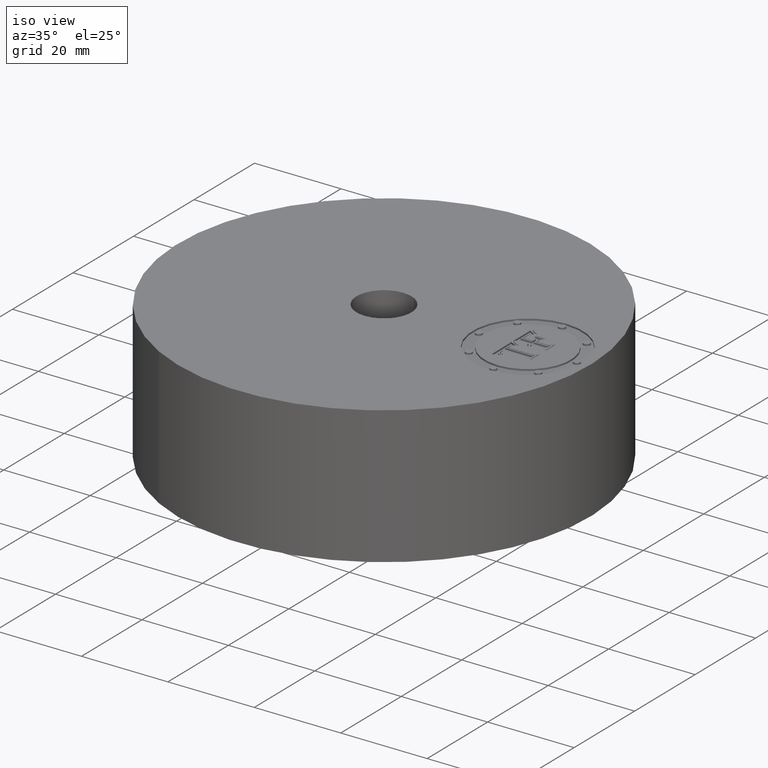
[diagram: clean part render]
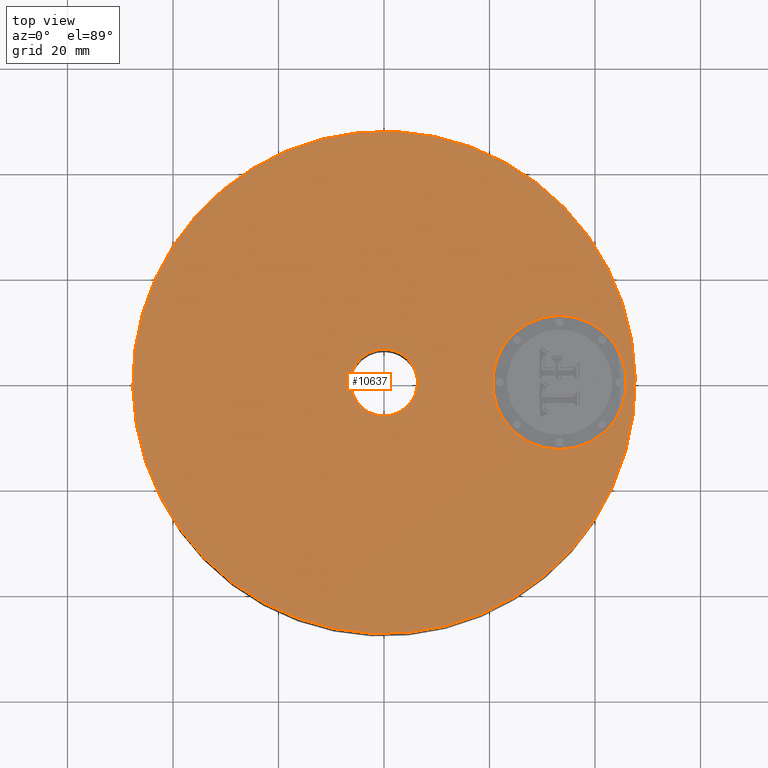
[diagram: tour spotlight — one face highlighted and labeled with its STEP entity id]
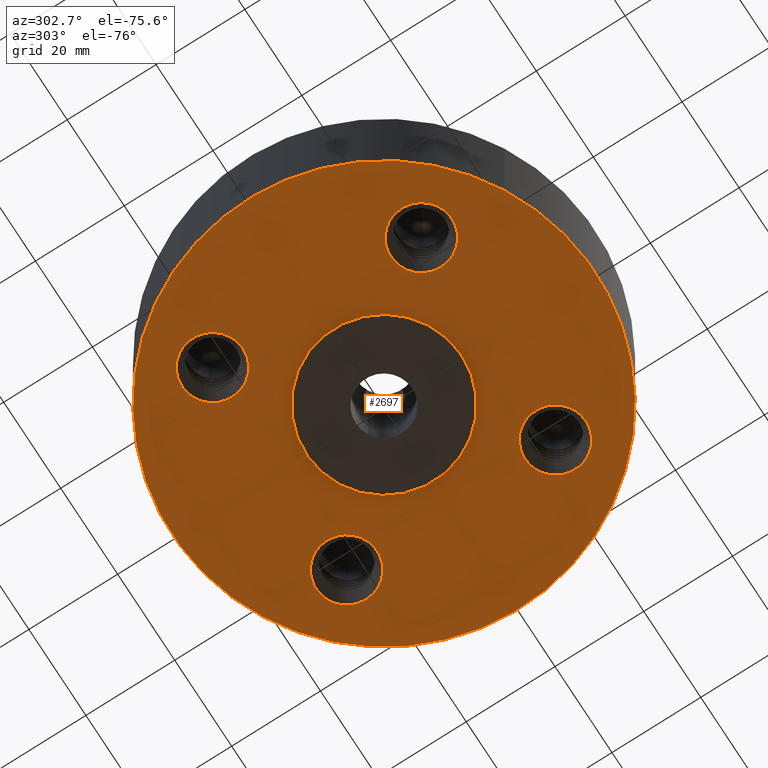
[diagram: tour spotlight — one face highlighted and labeled with its STEP entity id]
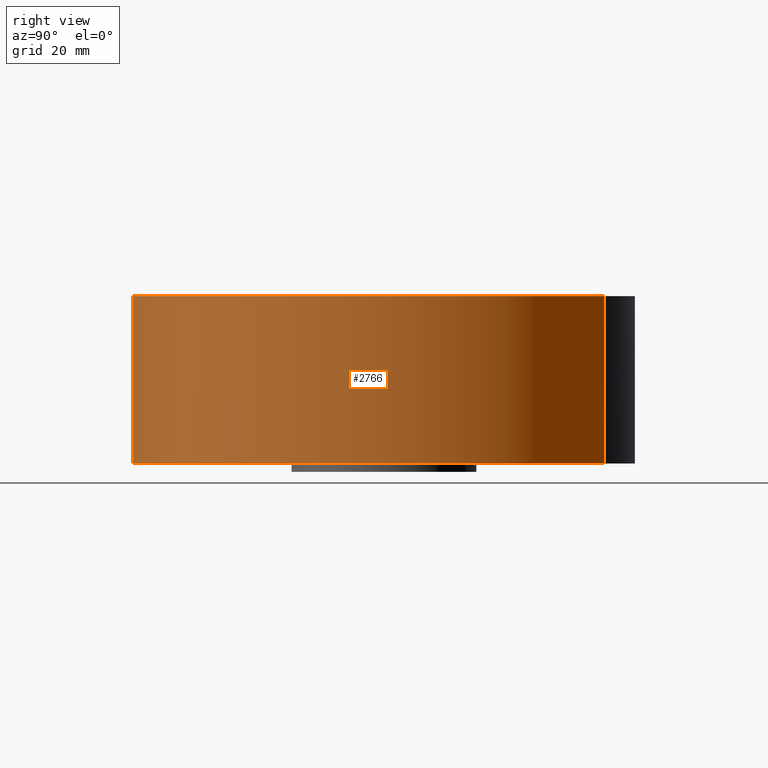
[diagram: tour spotlight — one face highlighted and labeled with its STEP entity id]
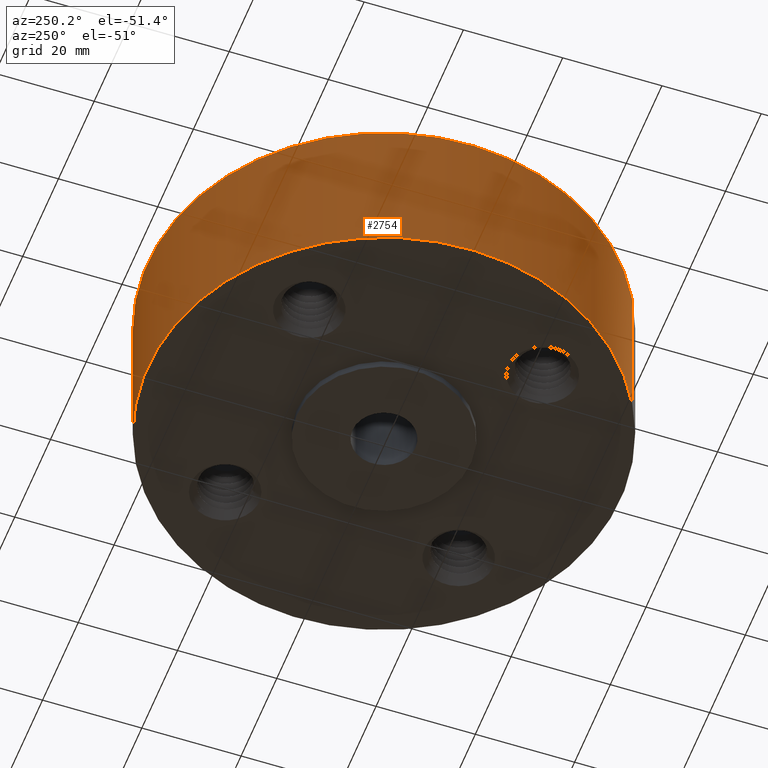
[diagram: tour spotlight — one face highlighted and labeled with its STEP entity id]
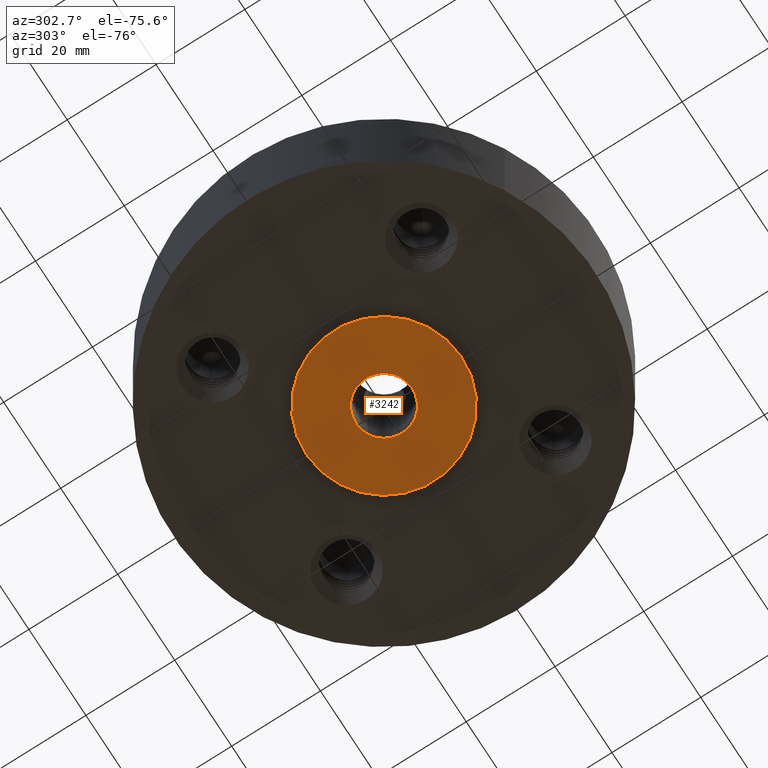
[diagram: tour spotlight — one face highlighted and labeled with its STEP entity id]
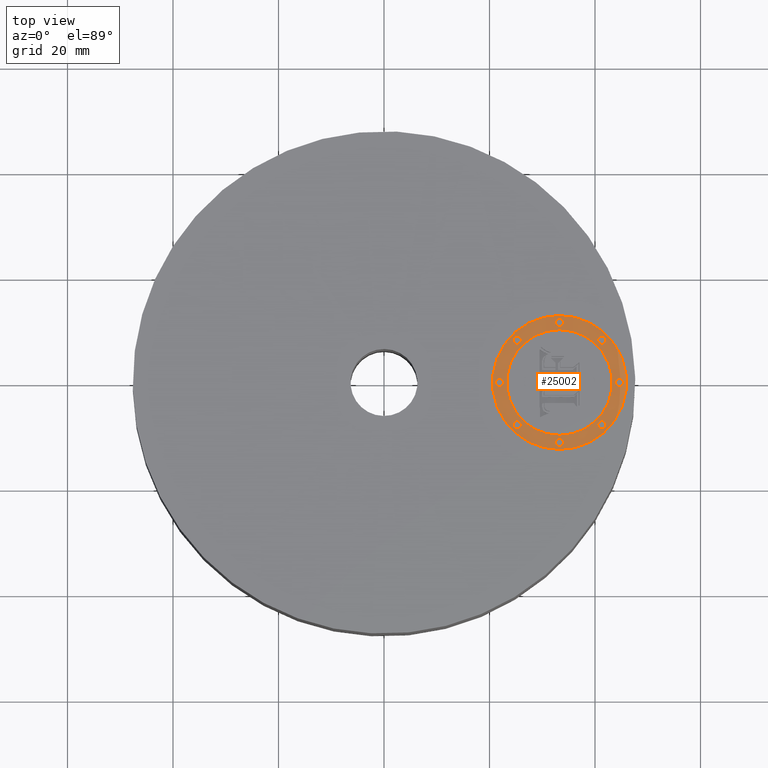
[diagram: tour spotlight — one face highlighted and labeled with its STEP entity id]
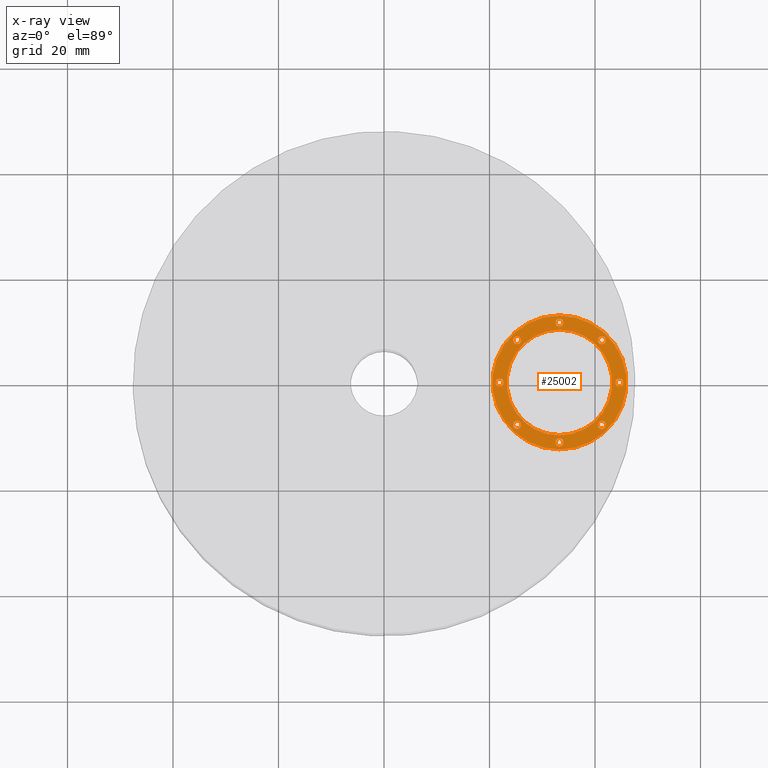
[diagram: x-ray of the same camera — body ghosted, this tour face saturated]
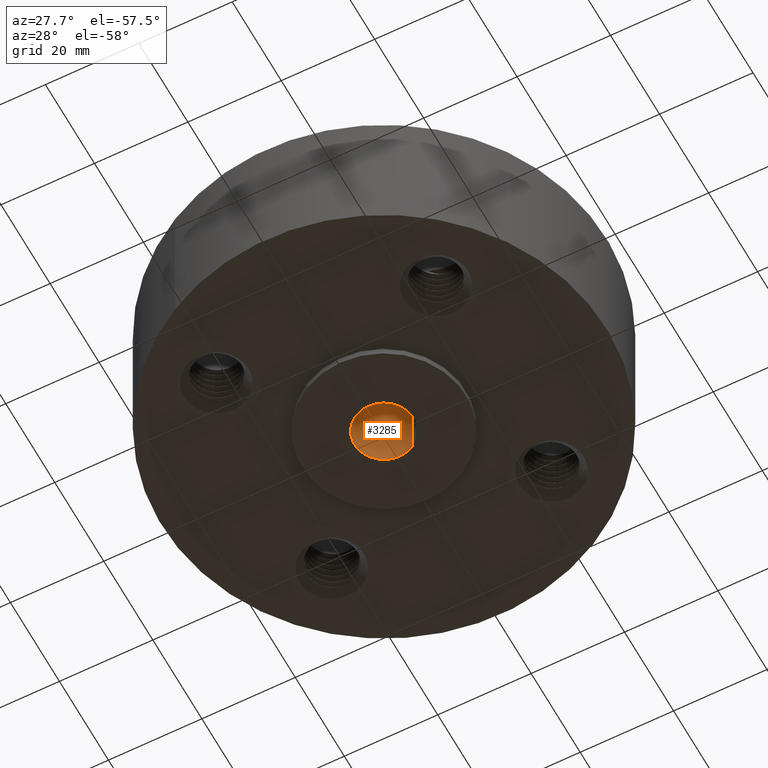
[diagram: tour spotlight — one face highlighted and labeled with its STEP entity id]
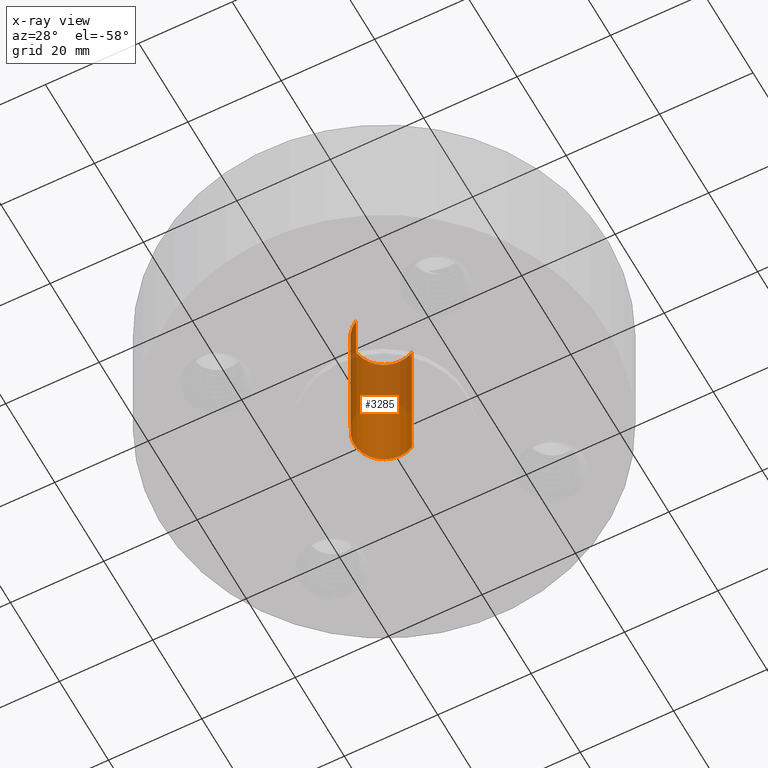
[diagram: x-ray of the same camera — body ghosted, this tour face saturated]
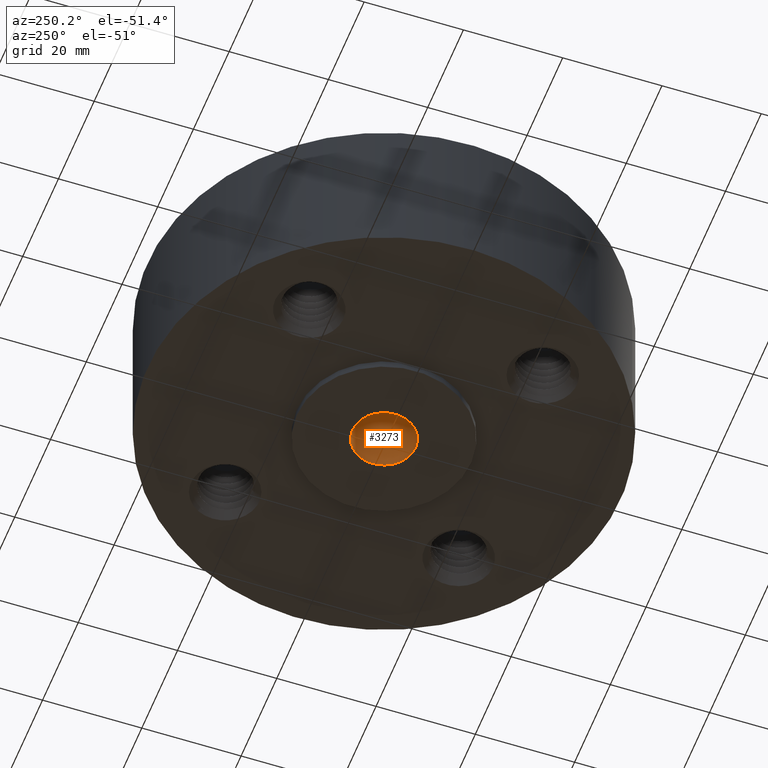
[diagram: tour spotlight — one face highlighted and labeled with its STEP entity id]
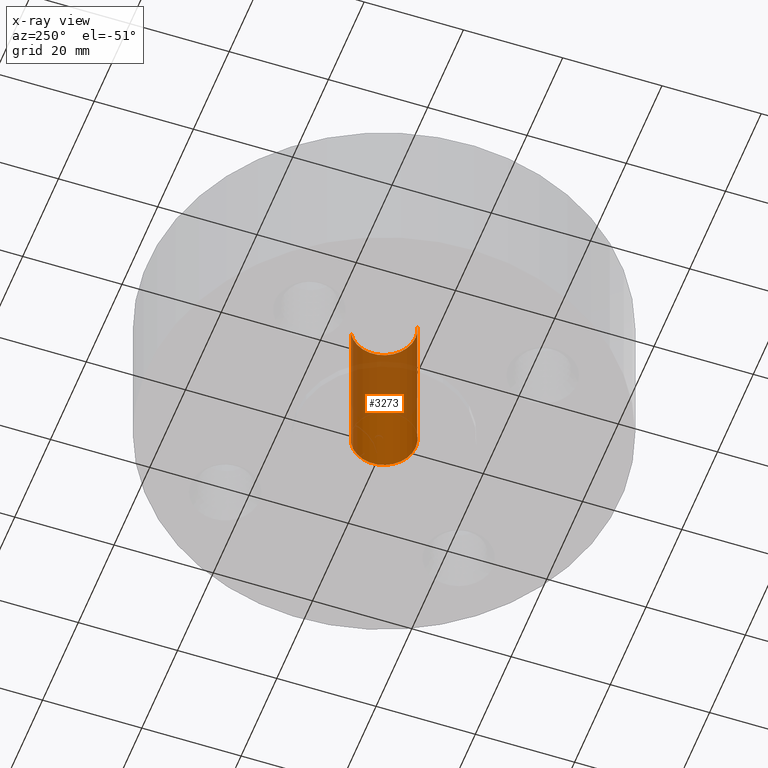
[diagram: x-ray of the same camera — body ghosted, this tour face saturated]
A machine part: a face-by-face anatomy tour. The part has 586 B-rep faces; the first image is the clean iso view, then the 8 largest visible faces are spotlighted one at a time (largest first), each with its STEP entity span.

Face 1 — top view, entity #10637. In plain terms, the highlighted planar face has unit normal (0, 0, -1).
Definition (entity closure, byte-faithful):
#2738=AXIS2_PLACEMENT_3D('Circle Axis2P3D',#2736,#2737,$) ;
#2757=AXIS2_PLACEMENT_3D('Circle Axis2P3D',#2755,#2756,$) ;
#3250=AXIS2_PLACEMENT_3D('Circle Axis2P3D',#3248,#3249,$) ;
#3276=AXIS2_PLACEMENT_3D('Circle Axis2P3D',#3274,#3275,$) ;
#10609=AXIS2_PLACEMENT_3D('Plane Axis2P3D',#10606,#10607,#10608) ;
#10621=AXIS2_PLACEMENT_3D('Circle Axis2P3D',#10619,#10620,$) ;
#10630=AXIS2_PLACEMENT_3D('Circle Axis2P3D',#10628,#10629,$) ;
#2733=CARTESIAN_POINT('Vertex',(-0.898922884886,-1.64546730355,1.25)) ;
#2736=CARTESIAN_POINT('Axis2P3D Location',(0.,0.,1.25)) ;
#2740=CARTESIAN_POINT('Vertex',(0.898922884886,1.64546730355,1.25)) ;
#2755=CARTESIAN_POINT('Axis2P3D Location',(0.,0.,1.25)) ;
#3248=CARTESIAN_POINT('Axis2P3D Location',(0.,0.,1.25000000001)) ;
#3252=CARTESIAN_POINT('Vertex',(0.119856384652,0.219395640473,1.25000000001)) ;
#3254=CARTESIAN_POINT('Vertex',(-0.119856384652,-0.219395640473,1.25000000001)) ;
#3274=CARTESIAN_POINT('Axis2P3D Location',(0.,0.,1.25000000001)) ;
#10606=CARTESIAN_POINT('Axis2P3D Location',(0.,0.250000000001,1.25000000001)) ;
#10619=CARTESIAN_POINT('Axis2P3D Location',(1.31000000001,0.,1.25000000001)) ;
#10623=CARTESIAN_POINT('Vertex',(1.31000000001,-0.499999995002,1.25000000001)) ;
#10625=CARTESIAN_POINT('Vertex',(1.31000000001,0.499999995002,1.25000000001)) ;
#10628=CARTESIAN_POINT('Axis2P3D Location',(1.31000000001,0.,1.25000000001)) ;
#2737=DIRECTION('Axis2P3D Direction',(0.,0.,-0.0393700787402)) ;
#2756=DIRECTION('Axis2P3D Direction',(0.,0.,-0.0393700787402)) ;
#3249=DIRECTION('Axis2P3D Direction',(0.,0.,-0.0393700787402)) ;
#3275=DIRECTION('Axis2P3D Direction',(0.,0.,-0.0393700787402)) ;
#10607=DIRECTION('Axis2P3D Direction',(0.,0.,-0.0393700787402)) ;
#10608=DIRECTION('Axis2P3D XDirection',(0.0393700787402,0.,0.)) ;
#10620=DIRECTION('Axis2P3D Direction',(0.,0.,-0.0393700787402)) ;
#10629=DIRECTION('Axis2P3D Direction',(0.,0.,-0.0393700787402)) ;
#10612=ORIENTED_EDGE('',*,*,#2759,.F.) ;
#10613=ORIENTED_EDGE('',*,*,#2742,.F.) ;
#10616=ORIENTED_EDGE('',*,*,#3278,.T.) ;
#10617=ORIENTED_EDGE('',*,*,#3256,.T.) ;
#10634=ORIENTED_EDGE('',*,*,#10627,.F.) ;
#10635=ORIENTED_EDGE('',*,*,#10632,.F.) ;
#10618=FACE_BOUND('',#10615,.T.) ;
#10636=FACE_BOUND('',#10633,.T.) ;
#10637=ADVANCED_FACE('PartBody',(#10614,#10618,#10636),#10610,.F.) ;
#2739=CIRCLE('generated circle',#2738,1.87500000001) ;
#2758=CIRCLE('generated circle',#2757,1.87500000001) ;
#3251=CIRCLE('generated circle',#3250,0.250000000001) ;
#3277=CIRCLE('generated circle',#3276,0.250000000001) ;
#10622=CIRCLE('generated circle',#10621,0.499999995002) ;
#10631=CIRCLE('generated circle',#10630,0.499999995002) ;
#2742=EDGE_CURVE('',#2734,#2741,#2739,.T.) ;
#2759=EDGE_CURVE('',#2741,#2734,#2758,.T.) ;
#3256=EDGE_CURVE('',#3253,#3255,#3251,.T.) ;
#3278=EDGE_CURVE('',#3255,#3253,#3277,.T.) ;
#10627=EDGE_CURVE('',#10624,#10626,#10622,.F.) ;
#10632=EDGE_CURVE('',#10626,#10624,#10631,.F.) ;
#10611=EDGE_LOOP('',(#10612,#10613)) ;
#10615=EDGE_LOOP('',(#10616,#10617)) ;
#10633=EDGE_LOOP('',(#10634,#10635)) ;
#10614=FACE_OUTER_BOUND('',#10611,.T.) ;
#10610=PLANE('',#10609) ;
#2734=VERTEX_POINT('',#2733) ;
#2741=VERTEX_POINT('',#2740) ;
#3253=VERTEX_POINT('',#3252) ;
#3255=VERTEX_POINT('',#3254) ;
#10624=VERTEX_POINT('',#10623) ;
#10626=VERTEX_POINT('',#10625) ;

Face 2 — auxiliary view, entity #2697. In plain terms, the highlighted planar face has unit normal (0, 0, -1).
Definition (entity closure, byte-faithful):
#2448=AXIS2_PLACEMENT_3D('Circle Axis2P3D',#2446,#2447,$) ;
#2587=AXIS2_PLACEMENT_3D('Circle Axis2P3D',#2585,#2586,$) ;
#2601=AXIS2_PLACEMENT_3D('Plane Axis2P3D',#2598,#2599,#2600) ;
#2605=AXIS2_PLACEMENT_3D('Circle Axis2P3D',#2603,#2604,$) ;
#2614=AXIS2_PLACEMENT_3D('Circle Axis2P3D',#2612,#2613,$) ;
#2627=AXIS2_PLACEMENT_3D('Circle Axis2P3D',#2625,#2626,$) ;
#2636=AXIS2_PLACEMENT_3D('Circle Axis2P3D',#2634,#2635,$) ;
#2645=AXIS2_PLACEMENT_3D('Circle Axis2P3D',#2643,#2644,$) ;
#2654=AXIS2_PLACEMENT_3D('Circle Axis2P3D',#2652,#2653,$) ;
#2663=AXIS2_PLACEMENT_3D('Circle Axis2P3D',#2661,#2662,$) ;
#2672=AXIS2_PLACEMENT_3D('Circle Axis2P3D',#2670,#2671,$) ;
#2681=AXIS2_PLACEMENT_3D('Circle Axis2P3D',#2679,#2680,$) ;
#2690=AXIS2_PLACEMENT_3D('Circle Axis2P3D',#2688,#2689,$) ;
#2443=CARTESIAN_POINT('Vertex',(1.16413475763,1.05623420432,0.)) ;
#2446=CARTESIAN_POINT('Axis2P3D Location',(0.926309883358,0.926309883358,0.)) ;
#2450=CARTESIAN_POINT('Vertex',(0.688485009085,0.796385562396,0.)) ;
#2585=CARTESIAN_POINT('Axis2P3D Location',(0.926309883358,0.926309883358,0.)) ;
#2598=CARTESIAN_POINT('Axis2P3D Location',(0.,1.87500000001,0.)) ;
#2603=CARTESIAN_POINT('Axis2P3D Location',(0.,0.,0.)) ;
#2607=CARTESIAN_POINT('Vertex',(-0.898922884886,-1.64546730355,-3.65062311089E-014)) ;
#2609=CARTESIAN_POINT('Vertex',(0.898922884886,1.64546730355,-3.65062311089E-014)) ;
#2612=CARTESIAN_POINT('Axis2P3D Location',(0.,0.,0.)) ;
#2625=CARTESIAN_POINT('Axis2P3D Location',(0.,0.,0.)) ;
#2629=CARTESIAN_POINT('Vertex',(0.330803621638,0.605531967707,-2.73447056774E-014)) ;
#2631=CARTESIAN_POINT('Vertex',(-0.330803621638,-0.605531967707,-2.73447056774E-014)) ;
#2634=CARTESIAN_POINT('Axis2P3D Location',(0.,0.,0.)) ;
#2643=CARTESIAN_POINT('Axis2P3D Location',(0.926309883358,-0.926309883358,0.)) ;
#2647=CARTESIAN_POINT('Vertex',(1.05623420432,-1.16413475763,0.)) ;
#2649=CARTESIAN_POINT('Vertex',(0.796385562396,-0.688485009085,0.)) ;
#2652=CARTESIAN_POINT('Axis2P3D Location',(0.926309883358,-0.926309883358,0.)) ;
#2661=CARTESIAN_POINT('Axis2P3D Location',(-0.926309883358,-0.926309883358,0.)) ;
#2665=CARTESIAN_POINT('Vertex',(-1.16413475763,-1.05623420432,0.)) ;
#2667=CARTESIAN_POINT('Vertex',(-0.688485009085,-0.796385562396,0.)) ;
#2670=CARTESIAN_POINT('Axis2P3D Location',(-0.926309883358,-0.926309883358,0.)) ;
#2679=CARTESIAN_POINT('Axis2P3D Location',(-0.926309883358,0.926309883358,0.)) ;
#2683=CARTESIAN_POINT('Vertex',(-1.05623420432,1.16413475763,0.)) ;
#2685=CARTESIAN_POINT('Vertex',(-0.796385562396,0.688485009085,0.)) ;
#2688=CARTESIAN_POINT('Axis2P3D Location',(-0.926309883358,0.926309883358,0.)) ;
#2447=DIRECTION('Axis2P3D Direction',(0.,0.,-0.0393700787402)) ;
#2586=DIRECTION('Axis2P3D Direction',(0.,0.,-0.0393700787402)) ;
#2599=DIRECTION('Axis2P3D Direction',(0.,0.,-0.0393700787402)) ;
#2600=DIRECTION('Axis2P3D XDirection',(0.0393700787402,0.,0.)) ;
#2604=DIRECTION('Axis2P3D Direction',(0.,0.,-0.0393700787402)) ;
#2613=DIRECTION('Axis2P3D Direction',(0.,0.,-0.0393700787402)) ;
#2626=DIRECTION('Axis2P3D Direction',(0.,0.,-0.0393700787402)) ;
#2635=DIRECTION('Axis2P3D Direction',(0.,0.,-0.0393700787402)) ;
#2644=DIRECTION('Axis2P3D Direction',(0.,0.,-0.0393700787402)) ;
#2653=DIRECTION('Axis2P3D Direction',(0.,0.,-0.0393700787402)) ;
#2662=DIRECTION('Axis2P3D Direction',(0.,0.,-0.0393700787402)) ;
#2671=DIRECTION('Axis2P3D Direction',(0.,0.,-0.0393700787402)) ;
#2680=DIRECTION('Axis2P3D Direction',(0.,0.,-0.0393700787402)) ;
#2689=DIRECTION('Axis2P3D Direction',(0.,0.,-0.0393700787402)) ;
#2618=ORIENTED_EDGE('',*,*,#2611,.T.) ;
#2619=ORIENTED_EDGE('',*,*,#2616,.T.) ;
#2622=ORIENTED_EDGE('',*,*,#2589,.F.) ;
#2623=ORIENTED_EDGE('',*,*,#2452,.F.) ;
#2640=ORIENTED_EDGE('',*,*,#2633,.F.) ;
#2641=ORIENTED_EDGE('',*,*,#2638,.F.) ;
#2658=ORIENTED_EDGE('',*,*,#2651,.F.) ;
#2659=ORIENTED_EDGE('',*,*,#2656,.F.) ;
#2676=ORIENTED_EDGE('',*,*,#2669,.F.) ;
#2677=ORIENTED_EDGE('',*,*,#2674,.F.) ;
#2694=ORIENTED_EDGE('',*,*,#2687,.F.) ;
#2695=ORIENTED_EDGE('',*,*,#2692,.F.) ;
#2624=FACE_BOUND('',#2621,.T.) ;
#2642=FACE_BOUND('',#2639,.T.) ;
#2660=FACE_BOUND('',#2657,.T.) ;
#2678=FACE_BOUND('',#2675,.T.) ;
#2696=FACE_BOUND('',#2693,.T.) ;
#2697=ADVANCED_FACE('PartBody',(#2620,#2624,#2642,#2660,#2678,#2696),#2602,.T.) ;
#2449=CIRCLE('generated circle',#2448,0.271000000001) ;
#2588=CIRCLE('generated circle',#2587,0.271000000001) ;
#2606=CIRCLE('generated circle',#2605,1.87500000001) ;
#2615=CIRCLE('generated circle',#2614,1.87500000001) ;
#2628=CIRCLE('generated circle',#2627,0.690000000003) ;
#2637=CIRCLE('generated circle',#2636,0.690000000003) ;
#2646=CIRCLE('generated circle',#2645,0.271000000001) ;
#2655=CIRCLE('generated circle',#2654,0.271000000001) ;
#2664=CIRCLE('generated circle',#2663,0.271000000001) ;
#2673=CIRCLE('generated circle',#2672,0.271000000001) ;
#2682=CIRCLE('generated circle',#2681,0.271000000001) ;
#2691=CIRCLE('generated circle',#2690,0.271000000001) ;
#2452=EDGE_CURVE('',#2444,#2451,#2449,.T.) ;
#2589=EDGE_CURVE('',#2451,#2444,#2588,.T.) ;
#2611=EDGE_CURVE('',#2608,#2610,#2606,.T.) ;
#2616=EDGE_CURVE('',#2610,#2608,#2615,.T.) ;
#2633=EDGE_CURVE('',#2630,#2632,#2628,.T.) ;
#2638=EDGE_CURVE('',#2632,#2630,#2637,.T.) ;
#2651=EDGE_CURVE('',#2648,#2650,#2646,.T.) ;
#2656=EDGE_CURVE('',#2650,#2648,#2655,.T.) ;
#2669=EDGE_CURVE('',#2666,#2668,#2664,.T.) ;
#2674=EDGE_CURVE('',#2668,#2666,#2673,.T.) ;
#2687=EDGE_CURVE('',#2684,#2686,#2682,.T.) ;
#2692=EDGE_CURVE('',#2686,#2684,#2691,.T.) ;
#2617=EDGE_LOOP('',(#2618,#2619)) ;
#2621=EDGE_LOOP('',(#2622,#2623)) ;
#2639=EDGE_LOOP('',(#2640,#2641)) ;
#2657=EDGE_LOOP('',(#2658,#2659)) ;
#2675=EDGE_LOOP('',(#2676,#2677)) ;
#2693=EDGE_LOOP('',(#2694,#2695)) ;
#2620=FACE_OUTER_BOUND('',#2617,.T.) ;
#2602=PLANE('',#2601) ;
#2444=VERTEX_POINT('',#2443) ;
#2451=VERTEX_POINT('',#2450) ;
#2608=VERTEX_POINT('',#2607) ;
#2610=VERTEX_POINT('',#2609) ;
#2630=VERTEX_POINT('',#2629) ;
#2632=VERTEX_POINT('',#2631) ;
#2648=VERTEX_POINT('',#2647) ;
#2650=VERTEX_POINT('',#2649) ;
#2666=VERTEX_POINT('',#2665) ;
#2668=VERTEX_POINT('',#2667) ;
#2684=VERTEX_POINT('',#2683) ;
#2686=VERTEX_POINT('',#2685) ;

Face 3 — right view, entity #2766. In plain terms, the highlighted cylindrical surface (partial cylindrical patch) has radius 47.625 mm, axis along (0, 0, -1).
Definition (entity closure, byte-faithful):
#2614=AXIS2_PLACEMENT_3D('Circle Axis2P3D',#2612,#2613,$) ;
#2727=AXIS2_PLACEMENT_3D('Cylinder Axis2P3D',#2724,#2725,#2726) ;
#2757=AXIS2_PLACEMENT_3D('Circle Axis2P3D',#2755,#2756,$) ;
#2607=CARTESIAN_POINT('Vertex',(-0.898922884886,-1.64546730355,-3.65062311089E-014)) ;
#2609=CARTESIAN_POINT('Vertex',(0.898922884886,1.64546730355,-3.65062311089E-014)) ;
#2612=CARTESIAN_POINT('Axis2P3D Location',(0.,0.,0.)) ;
#2724=CARTESIAN_POINT('Axis2P3D Location',(0.,0.,0.593750000002)) ;
#2729=CARTESIAN_POINT('Line Origine',(-0.898922884886,-1.64546730355,0.625000000002)) ;
#2733=CARTESIAN_POINT('Vertex',(-0.898922884886,-1.64546730355,1.25)) ;
#2740=CARTESIAN_POINT('Vertex',(0.898922884886,1.64546730355,1.25)) ;
#2743=CARTESIAN_POINT('Line Origine',(0.898922884886,1.64546730355,0.625000000002)) ;
#2755=CARTESIAN_POINT('Axis2P3D Location',(0.,0.,1.25)) ;
#2613=DIRECTION('Axis2P3D Direction',(0.,0.,-0.0393700787402)) ;
#2725=DIRECTION('Axis2P3D Direction',(0.,0.,-0.0393700787402)) ;
#2726=DIRECTION('Axis2P3D XDirection',(0.0188750212049,0.0345504945626,0.)) ;
#2730=DIRECTION('Vector Direction',(0.,0.,-0.0393700787402)) ;
#2744=DIRECTION('Vector Direction',(0.,0.,-0.0393700787402)) ;
#2756=DIRECTION('Axis2P3D Direction',(0.,0.,-0.0393700787402)) ;
#2731=VECTOR('Line Direction',#2730,0.0393700787402) ;
#2745=VECTOR('Line Direction',#2744,0.0393700787402) ;
#2761=ORIENTED_EDGE('',*,*,#2616,.F.) ;
#2762=ORIENTED_EDGE('',*,*,#2747,.T.) ;
#2763=ORIENTED_EDGE('',*,*,#2759,.T.) ;
#2764=ORIENTED_EDGE('',*,*,#2735,.F.) ;
#2766=ADVANCED_FACE('PartBody',(#2765),#2728,.T.) ;
#2615=CIRCLE('generated circle',#2614,1.87500000001) ;
#2758=CIRCLE('generated circle',#2757,1.87500000001) ;
#2728=CYLINDRICAL_SURFACE('generated cylinder',#2727,1.87500000001) ;
#2616=EDGE_CURVE('',#2610,#2608,#2615,.T.) ;
#2735=EDGE_CURVE('',#2608,#2734,#2732,.F.) ;
#2747=EDGE_CURVE('',#2610,#2741,#2746,.F.) ;
#2759=EDGE_CURVE('',#2741,#2734,#2758,.T.) ;
#2760=EDGE_LOOP('',(#2761,#2762,#2763,#2764)) ;
#2765=FACE_OUTER_BOUND('',#2760,.T.) ;
#2732=LINE('Line',#2729,#2731) ;
#2746=LINE('Line',#2743,#2745) ;
#2608=VERTEX_POINT('',#2607) ;
#2610=VERTEX_POINT('',#2609) ;
#2734=VERTEX_POINT('',#2733) ;
#2741=VERTEX_POINT('',#2740) ;

Face 4 — auxiliary view, entity #2754. In plain terms, the highlighted cylindrical surface (partial cylindrical patch) has radius 47.625 mm, axis along (0, 0, -1).
Definition (entity closure, byte-faithful):
#2605=AXIS2_PLACEMENT_3D('Circle Axis2P3D',#2603,#2604,$) ;
#2727=AXIS2_PLACEMENT_3D('Cylinder Axis2P3D',#2724,#2725,#2726) ;
#2738=AXIS2_PLACEMENT_3D('Circle Axis2P3D',#2736,#2737,$) ;
#2603=CARTESIAN_POINT('Axis2P3D Location',(0.,0.,0.)) ;
#2607=CARTESIAN_POINT('Vertex',(-0.898922884886,-1.64546730355,-3.65062311089E-014)) ;
#2609=CARTESIAN_POINT('Vertex',(0.898922884886,1.64546730355,-3.65062311089E-014)) ;
#2724=CARTESIAN_POINT('Axis2P3D Location',(0.,0.,0.593750000002)) ;
#2729=CARTESIAN_POINT('Line Origine',(-0.898922884886,-1.64546730355,0.625000000002)) ;
#2733=CARTESIAN_POINT('Vertex',(-0.898922884886,-1.64546730355,1.25)) ;
#2736=CARTESIAN_POINT('Axis2P3D Location',(0.,0.,1.25)) ;
#2740=CARTESIAN_POINT('Vertex',(0.898922884886,1.64546730355,1.25)) ;
#2743=CARTESIAN_POINT('Line Origine',(0.898922884886,1.64546730355,0.625000000002)) ;
#2604=DIRECTION('Axis2P3D Direction',(0.,0.,-0.0393700787402)) ;
#2725=DIRECTION('Axis2P3D Direction',(0.,0.,-0.0393700787402)) ;
#2726=DIRECTION('Axis2P3D XDirection',(0.0188750212049,0.0345504945626,0.)) ;
#2730=DIRECTION('Vector Direction',(0.,0.,-0.0393700787402)) ;
#2737=DIRECTION('Axis2P3D Direction',(0.,0.,-0.0393700787402)) ;
#2744=DIRECTION('Vector Direction',(0.,0.,-0.0393700787402)) ;
#2731=VECTOR('Line Direction',#2730,0.0393700787402) ;
#2745=VECTOR('Line Direction',#2744,0.0393700787402) ;
#2749=ORIENTED_EDGE('',*,*,#2611,.F.) ;
#2750=ORIENTED_EDGE('',*,*,#2735,.T.) ;
#2751=ORIENTED_EDGE('',*,*,#2742,.T.) ;
#2752=ORIENTED_EDGE('',*,*,#2747,.F.) ;
#2754=ADVANCED_FACE('PartBody',(#2753),#2728,.T.) ;
#2606=CIRCLE('generated circle',#2605,1.87500000001) ;
#2739=CIRCLE('generated circle',#2738,1.87500000001) ;
#2728=CYLINDRICAL_SURFACE('generated cylinder',#2727,1.87500000001) ;
#2611=EDGE_CURVE('',#2608,#2610,#2606,.T.) ;
#2735=EDGE_CURVE('',#2608,#2734,#2732,.F.) ;
#2742=EDGE_CURVE('',#2734,#2741,#2739,.T.) ;
#2747=EDGE_CURVE('',#2610,#2741,#2746,.F.) ;
#2748=EDGE_LOOP('',(#2749,#2750,#2751,#2752)) ;
#2753=FACE_OUTER_BOUND('',#2748,.T.) ;
#2732=LINE('Line',#2729,#2731) ;
#2746=LINE('Line',#2743,#2745) ;
#2608=VERTEX_POINT('',#2607) ;
#2610=VERTEX_POINT('',#2609) ;
#2734=VERTEX_POINT('',#2733) ;
#2741=VERTEX_POINT('',#2740) ;

Face 5 — auxiliary view, entity #3242. In plain terms, the highlighted planar face has unit normal (0, 0, -1).
Definition (entity closure, byte-faithful):
#2774=AXIS2_PLACEMENT_3D('Circle Axis2P3D',#2772,#2773,$) ;
#2800=AXIS2_PLACEMENT_3D('Circle Axis2P3D',#2798,#2799,$) ;
#3218=AXIS2_PLACEMENT_3D('Plane Axis2P3D',#3215,#3216,#3217) ;
#3226=AXIS2_PLACEMENT_3D('Circle Axis2P3D',#3224,#3225,$) ;
#3235=AXIS2_PLACEMENT_3D('Circle Axis2P3D',#3233,#3234,$) ;
#2772=CARTESIAN_POINT('Axis2P3D Location',(0.,0.,-0.0625000000003)) ;
#2776=CARTESIAN_POINT('Vertex',(0.330803621638,0.605531967707,-0.0625000000003)) ;
#2778=CARTESIAN_POINT('Vertex',(-0.330803621638,-0.605531967707,-0.0625000000003)) ;
#2798=CARTESIAN_POINT('Axis2P3D Location',(0.,0.,-0.0625000000003)) ;
#3215=CARTESIAN_POINT('Axis2P3D Location',(0.,0.690000000003,-0.0625000000003)) ;
#3224=CARTESIAN_POINT('Axis2P3D Location',(0.,0.,-0.0625000000003)) ;
#3228=CARTESIAN_POINT('Vertex',(0.119856384652,0.219395640473,-0.0625000000003)) ;
#3230=CARTESIAN_POINT('Vertex',(-0.119856384652,-0.219395640473,-0.0625000000003)) ;
#3233=CARTESIAN_POINT('Axis2P3D Location',(0.,0.,-0.0625000000003)) ;
#2773=DIRECTION('Axis2P3D Direction',(0.,0.,-0.0393700787402)) ;
#2799=DIRECTION('Axis2P3D Direction',(0.,0.,-0.0393700787402)) ;
#3216=DIRECTION('Axis2P3D Direction',(0.,0.,-0.0393700787402)) ;
#3217=DIRECTION('Axis2P3D XDirection',(0.0393700787402,0.,0.)) ;
#3225=DIRECTION('Axis2P3D Direction',(0.,0.,-0.0393700787402)) ;
#3234=DIRECTION('Axis2P3D Direction',(0.,0.,-0.0393700787402)) ;
#3221=ORIENTED_EDGE('',*,*,#2802,.T.) ;
#3222=ORIENTED_EDGE('',*,*,#2780,.T.) ;
#3239=ORIENTED_EDGE('',*,*,#3232,.F.) ;
#3240=ORIENTED_EDGE('',*,*,#3237,.F.) ;
#3241=FACE_BOUND('',#3238,.T.) ;
#3242=ADVANCED_FACE('PartBody',(#3223,#3241),#3219,.T.) ;
#2775=CIRCLE('generated circle',#2774,0.690000000003) ;
#2801=CIRCLE('generated circle',#2800,0.690000000003) ;
#3227=CIRCLE('generated circle',#3226,0.250000000001) ;
#3236=CIRCLE('generated circle',#3235,0.250000000001) ;
#2780=EDGE_CURVE('',#2777,#2779,#2775,.T.) ;
#2802=EDGE_CURVE('',#2779,#2777,#2801,.T.) ;
#3232=EDGE_CURVE('',#3229,#3231,#3227,.T.) ;
#3237=EDGE_CURVE('',#3231,#3229,#3236,.T.) ;
#3220=EDGE_LOOP('',(#3221,#3222)) ;
#3238=EDGE_LOOP('',(#3239,#3240)) ;
#3223=FACE_OUTER_BOUND('',#3220,.T.) ;
#3219=PLANE('',#3218) ;
#2777=VERTEX_POINT('',#2776) ;
#2779=VERTEX_POINT('',#2778) ;
#3229=VERTEX_POINT('',#3228) ;
#3231=VERTEX_POINT('',#3230) ;

Face 6 — top view, entity #25002. An x-ray twin of the same camera follows (body ghosted, this face saturated) — the face is partly hidden behind the body. In plain terms, the highlighted planar face has unit normal (0, 0, 1).
Definition (entity closure, byte-faithful):
#13649=AXIS2_PLACEMENT_3D('Plane Axis2P3D',#13646,#13647,#13648) ;
#24800=AXIS2_PLACEMENT_3D('Circle Axis2P3D',#24798,#24799,$) ;
#24819=AXIS2_PLACEMENT_3D('Circle Axis2P3D',#24817,#24818,$) ;
#24842=AXIS2_PLACEMENT_3D('Circle Axis2P3D',#24840,#24841,$) ;
#24851=AXIS2_PLACEMENT_3D('Circle Axis2P3D',#24849,#24850,$) ;
#24860=AXIS2_PLACEMENT_3D('Circle Axis2P3D',#24858,#24859,$) ;
#24869=AXIS2_PLACEMENT_3D('Circle Axis2P3D',#24867,#24868,$) ;
#24878=AXIS2_PLACEMENT_3D('Circle Axis2P3D',#24876,#24877,$) ;
#24887=AXIS2_PLACEMENT_3D('Circle Axis2P3D',#24885,#24886,$) ;
#24896=AXIS2_PLACEMENT_3D('Circle Axis2P3D',#24894,#24895,$) ;
#24905=AXIS2_PLACEMENT_3D('Circle Axis2P3D',#24903,#24904,$) ;
#24914=AXIS2_PLACEMENT_3D('Circle Axis2P3D',#24912,#24913,$) ;
#24923=AXIS2_PLACEMENT_3D('Circle Axis2P3D',#24921,#24922,$) ;
#24932=AXIS2_PLACEMENT_3D('Circle Axis2P3D',#24930,#24931,$) ;
#24941=AXIS2_PLACEMENT_3D('Circle Axis2P3D',#24939,#24940,$) ;
#24950=AXIS2_PLACEMENT_3D('Circle Axis2P3D',#24948,#24949,$) ;
#24959=AXIS2_PLACEMENT_3D('Circle Axis2P3D',#24957,#24958,$) ;
#24968=AXIS2_PLACEMENT_3D('Circle Axis2P3D',#24966,#24967,$) ;
#24977=AXIS2_PLACEMENT_3D('Circle Axis2P3D',#24975,#24976,$) ;
#24986=AXIS2_PLACEMENT_3D('Circle Axis2P3D',#24984,#24985,$) ;
#24995=AXIS2_PLACEMENT_3D('Circle Axis2P3D',#24993,#24994,$) ;
#13646=CARTESIAN_POINT('Axis2P3D Location',(0.,0.,1.235)) ;
#24788=CARTESIAN_POINT('Vertex',(1.31000000001,0.499999995002,1.235)) ;
#24795=CARTESIAN_POINT('Vertex',(1.31000000001,-0.499999995002,1.235)) ;
#24798=CARTESIAN_POINT('Axis2P3D Location',(1.31000000001,0.,1.235)) ;
#24817=CARTESIAN_POINT('Axis2P3D Location',(1.31000000001,0.,1.235)) ;
#24840=CARTESIAN_POINT('Axis2P3D Location',(1.31000000001,0.,1.235)) ;
#24844=CARTESIAN_POINT('Vertex',(1.31000000001,-0.393939390002,1.235)) ;
#24846=CARTESIAN_POINT('Vertex',(1.31000000001,0.393939390002,1.235)) ;
#24849=CARTESIAN_POINT('Axis2P3D Location',(1.31000000001,0.,1.235)) ;
#24858=CARTESIAN_POINT('Axis2P3D Location',(0.863030307503,-1.27155105343E-015,1.235)) ;
#24862=CARTESIAN_POINT('Vertex',(0.863030307503,-0.0303030300001,1.235)) ;
#24864=CARTESIAN_POINT('Vertex',(0.863030307503,0.0303030300001,1.235)) ;
#24867=CARTESIAN_POINT('Axis2P3D Location',(0.863030307503,-1.27155105343E-015,1.235)) ;
#24876=CARTESIAN_POINT('Axis2P3D Location',(1.31000000001,0.446969692502,1.235)) ;
#24880=CARTESIAN_POINT('Vertex',(1.31000000001,0.416666662502,1.235)) ;
#24882=CARTESIAN_POINT('Vertex',(1.31000000001,0.477272722502,1.235)) ;
#24885=CARTESIAN_POINT('Axis2P3D Location',(1.31000000001,0.446969692502,1.235)) ;
#24894=CARTESIAN_POINT('Axis2P3D Location',(0.993944699452,0.316055300553,1.235)) ;
#24898=CARTESIAN_POINT('Vertex',(0.993944699452,0.285752270553,1.235)) ;
#24900=CARTESIAN_POINT('Vertex',(0.993944699452,0.346358330553,1.235)) ;
#24903=CARTESIAN_POINT('Axis2P3D Location',(0.993944699452,0.316055300553,1.235)) ;
#24912=CARTESIAN_POINT('Axis2P3D Location',(1.75696969251,1.17265263816E-014,1.235)) ;
#24916=CARTESIAN_POINT('Vertex',(1.75696969251,-0.0303030300001,1.235)) ;
#24918=CARTESIAN_POINT('Vertex',(1.75696969251,0.0303030300001,1.235)) ;
#24921=CARTESIAN_POINT('Axis2P3D Location',(1.75696969251,1.17265263816E-014,1.235)) ;
#24930=CARTESIAN_POINT('Axis2P3D Location',(1.62605530056,0.316055300553,1.235)) ;
#24934=CARTESIAN_POINT('Vertex',(1.62605530056,0.285752270553,1.235)) ;
#24936=CARTESIAN_POINT('Vertex',(1.62605530056,0.346358330553,1.235)) ;
#24939=CARTESIAN_POINT('Axis2P3D Location',(1.62605530056,0.316055300553,1.235)) ;
#24948=CARTESIAN_POINT('Axis2P3D Location',(1.31000000001,-0.446969692502,1.235)) ;
#24952=CARTESIAN_POINT('Vertex',(1.31000000001,-0.416666662502,1.235)) ;
#24954=CARTESIAN_POINT('Vertex',(1.31000000001,-0.477272722502,1.235)) ;
#24957=CARTESIAN_POINT('Axis2P3D Location',(1.31000000001,-0.446969692502,1.235)) ;
#24966=CARTESIAN_POINT('Axis2P3D Location',(0.993944699452,-0.316055300553,1.235)) ;
#24970=CARTESIAN_POINT('Vertex',(0.993944699452,-0.285752270553,1.235)) ;
#24972=CARTESIAN_POINT('Vertex',(0.993944699452,-0.346358330553,1.235)) ;
#24975=CARTESIAN_POINT('Axis2P3D Location',(0.993944699452,-0.316055300553,1.235)) ;
#24984=CARTESIAN_POINT('Axis2P3D Location',(1.62605530056,-0.316055300553,1.235)) ;
#24988=CARTESIAN_POINT('Vertex',(1.62605530056,-0.285752270553,1.235)) ;
#24990=CARTESIAN_POINT('Vertex',(1.62605530056,-0.346358330553,1.235)) ;
#24993=CARTESIAN_POINT('Axis2P3D Location',(1.62605530056,-0.316055300553,1.235)) ;
#13647=DIRECTION('Axis2P3D Direction',(0.,0.,0.0393700787402)) ;
#13648=DIRECTION('Axis2P3D XDirection',(0.0393700787402,0.,0.)) ;
#24799=DIRECTION('Axis2P3D Direction',(0.,0.,0.0393700787402)) ;
#24818=DIRECTION('Axis2P3D Direction',(0.,0.,0.0393700787402)) ;
#24841=DIRECTION('Axis2P3D Direction',(0.,0.,0.0393700787402)) ;
#24850=DIRECTION('Axis2P3D Direction',(0.,0.,0.0393700787402)) ;
#24859=DIRECTION('Axis2P3D Direction',(0.,0.,0.0393700787402)) ;
#24868=DIRECTION('Axis2P3D Direction',(0.,0.,0.0393700787402)) ;
#24877=DIRECTION('Axis2P3D Direction',(0.,0.,0.0393700787402)) ;
#24886=DIRECTION('Axis2P3D Direction',(0.,0.,0.0393700787402)) ;
#24895=DIRECTION('Axis2P3D Direction',(0.,0.,0.0393700787402)) ;
#24904=DIRECTION('Axis2P3D Direction',(0.,0.,0.0393700787402)) ;
#24913=DIRECTION('Axis2P3D Direction',(0.,0.,0.0393700787402)) ;
#24922=DIRECTION('Axis2P3D Direction',(0.,0.,0.0393700787402)) ;
#24931=DIRECTION('Axis2P3D Direction',(0.,0.,0.0393700787402)) ;
#24940=DIRECTION('Axis2P3D Direction',(0.,0.,0.0393700787402)) ;
#24949=DIRECTION('Axis2P3D Direction',(0.,0.,0.0393700787402)) ;
#24958=DIRECTION('Axis2P3D Direction',(0.,0.,0.0393700787402)) ;
#24967=DIRECTION('Axis2P3D Direction',(0.,0.,0.0393700787402)) ;
#24976=DIRECTION('Axis2P3D Direction',(0.,0.,0.0393700787402)) ;
#24985=DIRECTION('Axis2P3D Direction',(0.,0.,0.0393700787402)) ;
#24994=DIRECTION('Axis2P3D Direction',(0.,0.,0.0393700787402)) ;
#24837=ORIENTED_EDGE('',*,*,#24802,.T.) ;
#24838=ORIENTED_EDGE('',*,*,#24821,.T.) ;
#24855=ORIENTED_EDGE('',*,*,#24848,.F.) ;
#24856=ORIENTED_EDGE('',*,*,#24853,.F.) ;
#24873=ORIENTED_EDGE('',*,*,#24866,.F.) ;
#24874=ORIENTED_EDGE('',*,*,#24871,.F.) ;
#24891=ORIENTED_EDGE('',*,*,#24884,.F.) ;
#24892=ORIENTED_EDGE('',*,*,#24889,.F.) ;
#24909=ORIENTED_EDGE('',*,*,#24902,.F.) ;
#24910=ORIENTED_EDGE('',*,*,#24907,.F.) ;
#24927=ORIENTED_EDGE('',*,*,#24920,.F.) ;
#24928=ORIENTED_EDGE('',*,*,#24925,.F.) ;
#24945=ORIENTED_EDGE('',*,*,#24938,.F.) ;
#24946=ORIENTED_EDGE('',*,*,#24943,.F.) ;
#24963=ORIENTED_EDGE('',*,*,#24956,.F.) ;
#24964=ORIENTED_EDGE('',*,*,#24961,.F.) ;
#24981=ORIENTED_EDGE('',*,*,#24974,.F.) ;
#24982=ORIENTED_EDGE('',*,*,#24979,.F.) ;
#24999=ORIENTED_EDGE('',*,*,#24992,.F.) ;
#25000=ORIENTED_EDGE('',*,*,#24997,.F.) ;
#24857=FACE_BOUND('',#24854,.T.) ;
#24875=FACE_BOUND('',#24872,.T.) ;
#24893=FACE_BOUND('',#24890,.T.) ;
#24911=FACE_BOUND('',#24908,.T.) ;
#24929=FACE_BOUND('',#24926,.T.) ;
#24947=FACE_BOUND('',#24944,.T.) ;
#24965=FACE_BOUND('',#24962,.T.) ;
#24983=FACE_BOUND('',#24980,.T.) ;
#25001=FACE_BOUND('',#24998,.T.) ;
#25002=ADVANCED_FACE('PartBody',(#24839,#24857,#24875,#24893,#24911,#24929,#24947,#24965,#24983,#25001),#13650,.T.) ;
#24801=CIRCLE('generated circle',#24800,0.499999995002) ;
#24820=CIRCLE('generated circle',#24819,0.499999995002) ;
#24843=CIRCLE('generated circle',#24842,0.393939390002) ;
#24852=CIRCLE('generated circle',#24851,0.393939390002) ;
#24861=CIRCLE('generated circle',#24860,0.0303030300001) ;
#24870=CIRCLE('generated circle',#24869,0.0303030300001) ;
#24879=CIRCLE('generated circle',#24878,0.0303030300001) ;
#24888=CIRCLE('generated circle',#24887,0.0303030300001) ;
#24897=CIRCLE('generated circle',#24896,0.0303030300001) ;
#24906=CIRCLE('generated circle',#24905,0.0303030300001) ;
#24915=CIRCLE('generated circle',#24914,0.0303030300001) ;
#24924=CIRCLE('generated circle',#24923,0.0303030300001) ;
#24933=CIRCLE('generated circle',#24932,0.0303030300001) ;
#24942=CIRCLE('generated circle',#24941,0.0303030300001) ;
#24951=CIRCLE('generated circle',#24950,0.0303030300001) ;
#24960=CIRCLE('generated circle',#24959,0.0303030300001) ;
#24969=CIRCLE('generated circle',#24968,0.0303030300001) ;
#24978=CIRCLE('generated circle',#24977,0.0303030300001) ;
#24987=CIRCLE('generated circle',#24986,0.0303030300001) ;
#24996=CIRCLE('generated circle',#24995,0.0303030300001) ;
#24802=EDGE_CURVE('',#24789,#24796,#24801,.T.) ;
#24821=EDGE_CURVE('',#24796,#24789,#24820,.T.) ;
#24848=EDGE_CURVE('',#24845,#24847,#24843,.T.) ;
#24853=EDGE_CURVE('',#24847,#24845,#24852,.T.) ;
#24866=EDGE_CURVE('',#24863,#24865,#24861,.T.) ;
#24871=EDGE_CURVE('',#24865,#24863,#24870,.T.) ;
#24884=EDGE_CURVE('',#24881,#24883,#24879,.T.) ;
#24889=EDGE_CURVE('',#24883,#24881,#24888,.T.) ;
#24902=EDGE_CURVE('',#24899,#24901,#24897,.T.) ;
#24907=EDGE_CURVE('',#24901,#24899,#24906,.T.) ;
#24920=EDGE_CURVE('',#24917,#24919,#24915,.T.) ;
#24925=EDGE_CURVE('',#24919,#24917,#24924,.T.) ;
#24938=EDGE_CURVE('',#24935,#24937,#24933,.T.) ;
#24943=EDGE_CURVE('',#24937,#24935,#24942,.T.) ;
#24956=EDGE_CURVE('',#24953,#24955,#24951,.T.) ;
#24961=EDGE_CURVE('',#24955,#24953,#24960,.T.) ;
#24974=EDGE_CURVE('',#24971,#24973,#24969,.T.) ;
#24979=EDGE_CURVE('',#24973,#24971,#24978,.T.) ;
#24992=EDGE_CURVE('',#24989,#24991,#24987,.T.) ;
#24997=EDGE_CURVE('',#24991,#24989,#24996,.T.) ;
#24836=EDGE_LOOP('',(#24837,#24838)) ;
#24854=EDGE_LOOP('',(#24855,#24856)) ;
#24872=EDGE_LOOP('',(#24873,#24874)) ;
#24890=EDGE_LOOP('',(#24891,#24892)) ;
#24908=EDGE_LOOP('',(#24909,#24910)) ;
#24926=EDGE_LOOP('',(#24927,#24928)) ;
#24944=EDGE_LOOP('',(#24945,#24946)) ;
#24962=EDGE_LOOP('',(#24963,#24964)) ;
#24980=EDGE_LOOP('',(#24981,#24982)) ;
#24998=EDGE_LOOP('',(#24999,#25000)) ;
#24839=FACE_OUTER_BOUND('',#24836,.T.) ;
#13650=PLANE('',#13649) ;
#24789=VERTEX_POINT('',#24788) ;
#24796=VERTEX_POINT('',#24795) ;
#24845=VERTEX_POINT('',#24844) ;
#24847=VERTEX_POINT('',#24846) ;
#24863=VERTEX_POINT('',#24862) ;
#24865=VERTEX_POINT('',#24864) ;
#24881=VERTEX_POINT('',#24880) ;
#24883=VERTEX_POINT('',#24882) ;
#24899=VERTEX_POINT('',#24898) ;
#24901=VERTEX_POINT('',#24900) ;
#24917=VERTEX_POINT('',#24916) ;
#24919=VERTEX_POINT('',#24918) ;
#24935=VERTEX_POINT('',#24934) ;
#24937=VERTEX_POINT('',#24936) ;
#24953=VERTEX_POINT('',#24952) ;
#24955=VERTEX_POINT('',#24954) ;
#24971=VERTEX_POINT('',#24970) ;
#24973=VERTEX_POINT('',#24972) ;
#24989=VERTEX_POINT('',#24988) ;
#24991=VERTEX_POINT('',#24990) ;

Face 7 — auxiliary view, entity #3285. An x-ray twin of the same camera follows (body ghosted, this face saturated) — the face is partly hidden behind the body. In plain terms, the highlighted cylindrical surface (edge-blend (fillet) strip) has radius 6.35 mm, axis along (0, 0, -1).
Definition (entity closure, byte-faithful):
#3235=AXIS2_PLACEMENT_3D('Circle Axis2P3D',#3233,#3234,$) ;
#3246=AXIS2_PLACEMENT_3D('Cylinder Axis2P3D',#3243,#3244,#3245) ;
#3276=AXIS2_PLACEMENT_3D('Circle Axis2P3D',#3274,#3275,$) ;
#3228=CARTESIAN_POINT('Vertex',(0.119856384652,0.219395640473,-0.0625000000003)) ;
#3230=CARTESIAN_POINT('Vertex',(-0.119856384652,-0.219395640473,-0.0625000000003)) ;
#3233=CARTESIAN_POINT('Axis2P3D Location',(0.,0.,-0.0625000000003)) ;
#3243=CARTESIAN_POINT('Axis2P3D Location',(0.,0.,0.593750000002)) ;
#3252=CARTESIAN_POINT('Vertex',(0.119856384652,0.219395640473,1.25000000001)) ;
#3254=CARTESIAN_POINT('Vertex',(-0.119856384652,-0.219395640473,1.25000000001)) ;
#3257=CARTESIAN_POINT('Line Origine',(0.119856384652,0.219395640473,0.593750000002)) ;
#3262=CARTESIAN_POINT('Line Origine',(-0.119856384652,-0.219395640473,0.593750000002)) ;
#3274=CARTESIAN_POINT('Axis2P3D Location',(0.,0.,1.25000000001)) ;
#3234=DIRECTION('Axis2P3D Direction',(0.,0.,-0.0393700787402)) ;
#3244=DIRECTION('Axis2P3D Direction',(0.,0.,-0.0393700787402)) ;
#3245=DIRECTION('Axis2P3D XDirection',(-0.0188750212049,-0.0345504945626,0.)) ;
#3258=DIRECTION('Vector Direction',(0.,0.,-0.0393700787402)) ;
#3263=DIRECTION('Vector Direction',(0.,0.,-0.0393700787402)) ;
#3275=DIRECTION('Axis2P3D Direction',(0.,0.,-0.0393700787402)) ;
#3259=VECTOR('Line Direction',#3258,0.0393700787402) ;
#3264=VECTOR('Line Direction',#3263,0.0393700787402) ;
#3280=ORIENTED_EDGE('',*,*,#3278,.F.) ;
#3281=ORIENTED_EDGE('',*,*,#3266,.T.) ;
#3282=ORIENTED_EDGE('',*,*,#3237,.T.) ;
#3283=ORIENTED_EDGE('',*,*,#3261,.F.) ;
#3285=ADVANCED_FACE('PartBody',(#3284),#3247,.F.) ;
#3236=CIRCLE('generated circle',#3235,0.250000000001) ;
#3277=CIRCLE('generated circle',#3276,0.250000000001) ;
#3247=CYLINDRICAL_SURFACE('generated cylinder',#3246,0.250000000001) ;
#3237=EDGE_CURVE('',#3231,#3229,#3236,.T.) ;
#3261=EDGE_CURVE('',#3253,#3229,#3260,.T.) ;
#3266=EDGE_CURVE('',#3255,#3231,#3265,.T.) ;
#3278=EDGE_CURVE('',#3255,#3253,#3277,.T.) ;
#3279=EDGE_LOOP('',(#3280,#3281,#3282,#3283)) ;
#3284=FACE_OUTER_BOUND('',#3279,.T.) ;
#3260=LINE('Line',#3257,#3259) ;
#3265=LINE('Line',#3262,#3264) ;
#3229=VERTEX_POINT('',#3228) ;
#3231=VERTEX_POINT('',#3230) ;
#3253=VERTEX_POINT('',#3252) ;
#3255=VERTEX_POINT('',#3254) ;

Face 8 — auxiliary view, entity #3273. An x-ray twin of the same camera follows (body ghosted, this face saturated) — the face is partly hidden behind the body. In plain terms, the highlighted cylindrical surface (edge-blend (fillet) strip) has radius 6.35 mm, axis along (0, 0, -1).
Definition (entity closure, byte-faithful):
#3226=AXIS2_PLACEMENT_3D('Circle Axis2P3D',#3224,#3225,$) ;
#3246=AXIS2_PLACEMENT_3D('Cylinder Axis2P3D',#3243,#3244,#3245) ;
#3250=AXIS2_PLACEMENT_3D('Circle Axis2P3D',#3248,#3249,$) ;
#3224=CARTESIAN_POINT('Axis2P3D Location',(0.,0.,-0.0625000000003)) ;
#3228=CARTESIAN_POINT('Vertex',(0.119856384652,0.219395640473,-0.0625000000003)) ;
#3230=CARTESIAN_POINT('Vertex',(-0.119856384652,-0.219395640473,-0.0625000000003)) ;
#3243=CARTESIAN_POINT('Axis2P3D Location',(0.,0.,0.593750000002)) ;
#3248=CARTESIAN_POINT('Axis2P3D Location',(0.,0.,1.25000000001)) ;
#3252=CARTESIAN_POINT('Vertex',(0.119856384652,0.219395640473,1.25000000001)) ;
#3254=CARTESIAN_POINT('Vertex',(-0.119856384652,-0.219395640473,1.25000000001)) ;
#3257=CARTESIAN_POINT('Line Origine',(0.119856384652,0.219395640473,0.593750000002)) ;
#3262=CARTESIAN_POINT('Line Origine',(-0.119856384652,-0.219395640473,0.593750000002)) ;
#3225=DIRECTION('Axis2P3D Direction',(0.,0.,-0.0393700787402)) ;
#3244=DIRECTION('Axis2P3D Direction',(0.,0.,-0.0393700787402)) ;
#3245=DIRECTION('Axis2P3D XDirection',(-0.0188750212049,-0.0345504945626,0.)) ;
#3249=DIRECTION('Axis2P3D Direction',(0.,0.,-0.0393700787402)) ;
#3258=DIRECTION('Vector Direction',(0.,0.,-0.0393700787402)) ;
#3263=DIRECTION('Vector Direction',(0.,0.,-0.0393700787402)) ;
#3259=VECTOR('Line Direction',#3258,0.0393700787402) ;
#3264=VECTOR('Line Direction',#3263,0.0393700787402) ;
#3268=ORIENTED_EDGE('',*,*,#3256,.F.) ;
#3269=ORIENTED_EDGE('',*,*,#3261,.T.) ;
#3270=ORIENTED_EDGE('',*,*,#3232,.T.) ;
#3271=ORIENTED_EDGE('',*,*,#3266,.F.) ;
#3273=ADVANCED_FACE('PartBody',(#3272),#3247,.F.) ;
#3227=CIRCLE('generated circle',#3226,0.250000000001) ;
#3251=CIRCLE('generated circle',#3250,0.250000000001) ;
#3247=CYLINDRICAL_SURFACE('generated cylinder',#3246,0.250000000001) ;
#3232=EDGE_CURVE('',#3229,#3231,#3227,.T.) ;
#3256=EDGE_CURVE('',#3253,#3255,#3251,.T.) ;
#3261=EDGE_CURVE('',#3253,#3229,#3260,.T.) ;
#3266=EDGE_CURVE('',#3255,#3231,#3265,.T.) ;
#3267=EDGE_LOOP('',(#3268,#3269,#3270,#3271)) ;
#3272=FACE_OUTER_BOUND('',#3267,.T.) ;
#3260=LINE('Line',#3257,#3259) ;
#3265=LINE('Line',#3262,#3264) ;
#3229=VERTEX_POINT('',#3228) ;
#3231=VERTEX_POINT('',#3230) ;
#3253=VERTEX_POINT('',#3252) ;
#3255=VERTEX_POINT('',#3254) ;